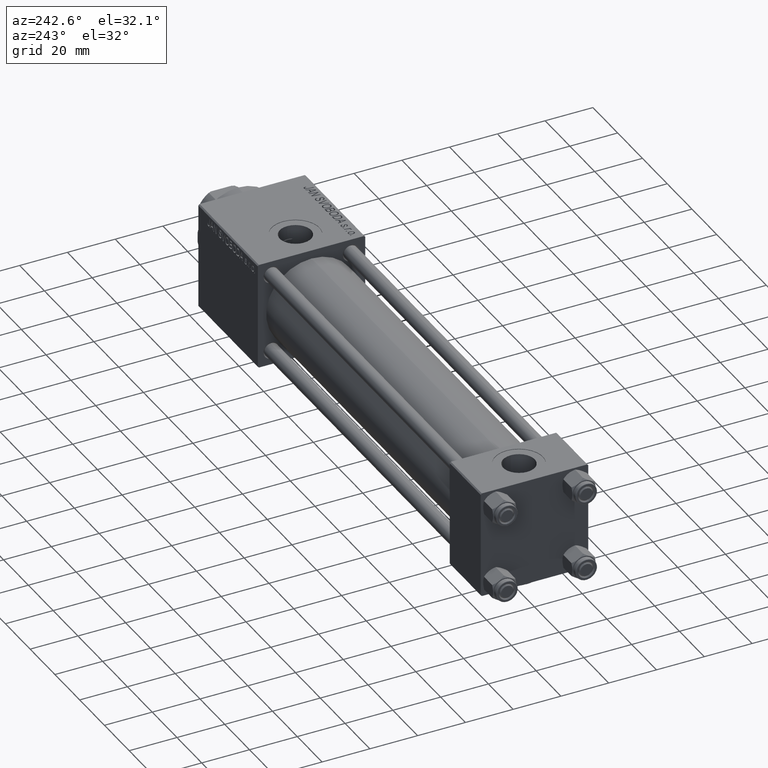
[diagram: clean part render]
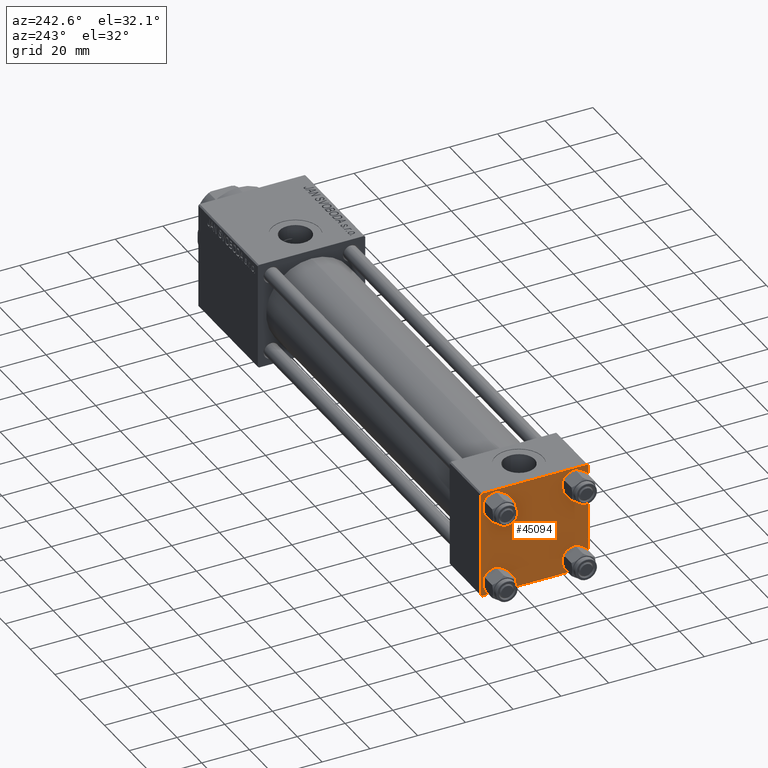
[diagram: same view with one face highlighted and labeled with its STEP entity id]
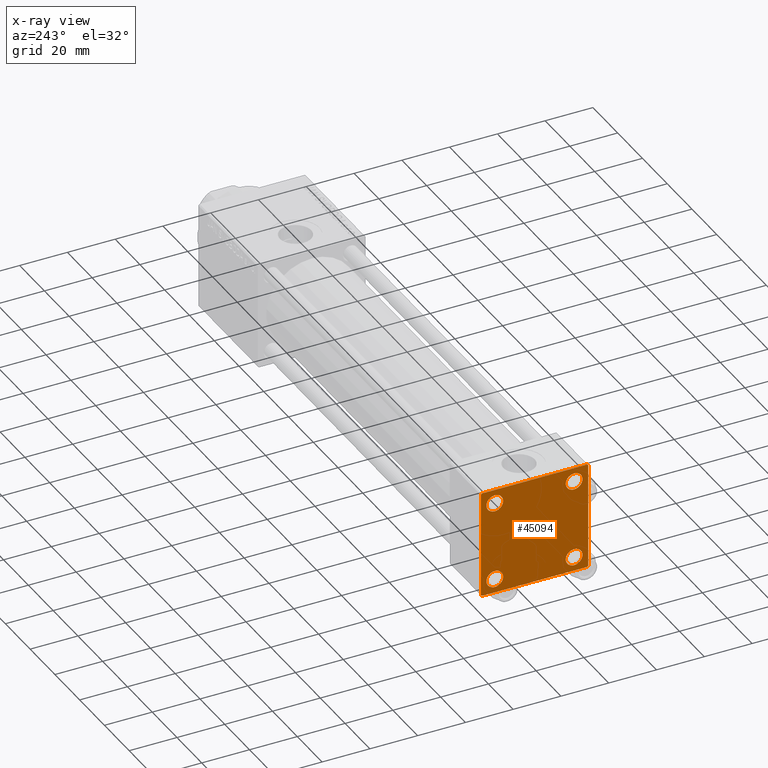
[diagram: x-ray of the same camera — body ghosted, the highlighted face saturated]
A machine part, auxiliary view. The second image highlights one B-rep face of the part: STEP entity #45094.
The next image is the same camera in x-ray: the body ghosted, the highlighted face saturated — about 0% of this face is hidden behind the body in this view.
In plain terms, the highlighted planar face has unit normal (-1, 0, 0).
Its self-contained STEP definition (entity closure, byte-faithful):
#184 = ORIENTED_EDGE ( 'NONE', *, *, #30209, .F. ) ;
#337 = EDGE_LOOP ( 'NONE', ( #13199, #28620 ) ) ;
#841 = CIRCLE ( 'NONE', #31068, 3.499999999999996003 ) ;
#1113 = EDGE_CURVE ( 'NONE', #16536, #39401, #24617, .T. ) ;
#1269 = CARTESIAN_POINT ( 'NONE',  ( 0.000000000000000000, 16.59999999999999787, -13.10000000000000675 ) ) ;
#1557 = EDGE_LOOP ( 'NONE', ( #15889, #29644 ) ) ;
#2138 = CARTESIAN_POINT ( 'NONE',  ( 0.000000000000000000, -21.99999999999997868, 22.50000000000000000 ) ) ;
#2219 = ORIENTED_EDGE ( 'NONE', *, *, #38857, .T. ) ;
#2565 = CARTESIAN_POINT ( 'NONE',  ( 0.000000000000000000, -16.59999999999999076, 13.10000000000001030 ) ) ;
#3727 = VECTOR ( 'NONE', #42954, 1000.000000000000114 ) ;
#4309 = FACE_BOUND ( 'NONE', #36253, .T. ) ;
#4429 = VECTOR ( 'NONE', #47414, 1000.000000000000000 ) ;
#4619 = CIRCLE ( 'NONE', #30524, 3.499999999999996003 ) ;
#4667 = DIRECTION ( 'NONE',  ( 1.000000000000000000, -0.000000000000000000, 0.000000000000000000 ) ) ;
#4908 = CARTESIAN_POINT ( 'NONE',  ( 0.000000000000000000, 22.50000000000000000, -22.49999999999999645 ) ) ;
#4917 = ORIENTED_EDGE ( 'NONE', *, *, #1113, .T. ) ;
#4999 = DIRECTION ( 'NONE',  ( -0.000000000000000000, -0.7071067811865426878, -0.7071067811865524577 ) ) ;
#5023 = ORIENTED_EDGE ( 'NONE', *, *, #40081, .T. ) ;
#5149 = DIRECTION ( 'NONE',  ( 1.000000000000000000, -0.000000000000000000, 0.000000000000000000 ) ) ;
#5203 = DIRECTION ( 'NONE',  ( 1.000000000000000000, -0.000000000000000000, 0.000000000000000000 ) ) ;
#6721 = VERTEX_POINT ( 'NONE', #30448 ) ;
#6767 = CARTESIAN_POINT ( 'NONE',  ( 0.000000000000000000, 16.59999999999999787, -16.60000000000000497 ) ) ;
#7136 = ORIENTED_EDGE ( 'NONE', *, *, #30970, .T. ) ;
#7644 = VERTEX_POINT ( 'NONE', #10767 ) ;
#7777 = VERTEX_POINT ( 'NONE', #41231 ) ;
#8197 = VERTEX_POINT ( 'NONE', #33572 ) ;
#9529 = CARTESIAN_POINT ( 'NONE',  ( 0.000000000000000000, -16.59999999999999076, -16.60000000000000853 ) ) ;
#10057 = CARTESIAN_POINT ( 'NONE',  ( 0.000000000000000000, 22.50000000000000000, 22.50000000000000355 ) ) ;
#10317 = CARTESIAN_POINT ( 'NONE',  ( 0.000000000000000000, -16.59999999999999076, -16.60000000000000853 ) ) ;
#10712 = CIRCLE ( 'NONE', #43569, 3.499999999999996003 ) ;
#10767 = CARTESIAN_POINT ( 'NONE',  ( 0.000000000000000000, 22.50000000000000000, -21.99999999999996803 ) ) ;
#11193 = CARTESIAN_POINT ( 'NONE',  ( 0.000000000000000000, -16.59999999999999076, -20.10000000000000497 ) ) ;
#11518 = DIRECTION ( 'NONE',  ( 0.000000000000000000, 0.000000000000000000, -1.000000000000000000 ) ) ;
#11599 = CIRCLE ( 'NONE', #16745, 3.499999999999996003 ) ;
#11892 = DIRECTION ( 'NONE',  ( -0.000000000000000000, 0.000000000000000000, 1.000000000000000000 ) ) ;
#12035 = CARTESIAN_POINT ( 'NONE',  ( -0.000000000000000000, -22.24999999999984013, 22.25000000000015277 ) ) ;
#12680 = DIRECTION ( 'NONE',  ( -1.000000000000000000, 0.000000000000000000, -0.000000000000000000 ) ) ;
#13199 = ORIENTED_EDGE ( 'NONE', *, *, #41444, .T. ) ;
#13219 = DIRECTION ( 'NONE',  ( 0.000000000000000000, -0.7071067811865426878, 0.7071067811865524577 ) ) ;
#13367 = EDGE_CURVE ( 'NONE', #8197, #52963, #45715, .T. ) ;
#13559 = LINE ( 'NONE', #4908, #25252 ) ;
#14477 = VERTEX_POINT ( 'NONE', #11193 ) ;
#14614 = FACE_BOUND ( 'NONE', #32179, .T. ) ;
#14824 = EDGE_CURVE ( 'NONE', #14477, #50421, #841, .T. ) ;
#15471 = CARTESIAN_POINT ( 'NONE',  ( 0.000000000000000000, 21.99999999999999289, 22.50000000000000355 ) ) ;
#15817 = LINE ( 'NONE', #12035, #39115 ) ;
#15889 = ORIENTED_EDGE ( 'NONE', *, *, #40375, .T. ) ;
#15949 = CARTESIAN_POINT ( 'NONE',  ( 0.000000000000000000, -16.59999999999999076, 16.60000000000000853 ) ) ;
#16196 = CARTESIAN_POINT ( 'NONE',  ( 0.000000000000000000, 0.000000000000000000, 0.000000000000000000 ) ) ;
#16238 = DIRECTION ( 'NONE',  ( 1.000000000000000000, -0.000000000000000000, 0.000000000000000000 ) ) ;
#16532 = CARTESIAN_POINT ( 'NONE',  ( 0.000000000000000000, -21.99999999999997158, -22.50000000000000711 ) ) ;
#16536 = VERTEX_POINT ( 'NONE', #2565 ) ;
#16745 = AXIS2_PLACEMENT_3D ( 'NONE', #9529, #5203, #50951 ) ;
#16990 = ORIENTED_EDGE ( 'NONE', *, *, #20915, .T. ) ;
#17141 = EDGE_LOOP ( 'NONE', ( #5023, #7136, #30751, #31369, #43865, #16990, #184, #2219 ) ) ;
#17369 = CARTESIAN_POINT ( 'NONE',  ( 0.000000000000000000, -16.59999999999999076, 16.60000000000000853 ) ) ;
#18049 = ORIENTED_EDGE ( 'NONE', *, *, #21995, .T. ) ;
#20915 = EDGE_CURVE ( 'NONE', #29931, #32687, #15817, .T. ) ;
#21036 = CARTESIAN_POINT ( 'NONE',  ( 0.000000000000000000, 22.50000000000000000, 22.50000000000000355 ) ) ;
#21120 = CIRCLE ( 'NONE', #44494, 3.499999999999996003 ) ;
#21149 = DIRECTION ( 'NONE',  ( 0.000000000000000000, 0.000000000000000000, 1.000000000000000000 ) ) ;
#21370 = CARTESIAN_POINT ( 'NONE',  ( 0.000000000000000000, 16.59999999999999787, 16.60000000000000497 ) ) ;
#21615 = EDGE_CURVE ( 'NONE', #29931, #7777, #36135, .T. ) ;
#21995 = EDGE_CURVE ( 'NONE', #6721, #29953, #52112, .T. ) ;
#22104 = LINE ( 'NONE', #22364, #3727 ) ;
#22209 = DIRECTION ( 'NONE',  ( 0.000000000000000000, -1.000000000000000000, -2.312964634635742957E-16 ) ) ;
#22364 = CARTESIAN_POINT ( 'NONE',  ( 0.000000000000000000, 22.24999999999999645, 22.24999999999999645 ) ) ;
#22563 = CARTESIAN_POINT ( 'NONE',  ( 0.000000000000000000, -16.59999999999999076, -13.10000000000001030 ) ) ;
#22604 = VECTOR ( 'NONE', #4999, 1000.000000000000000 ) ;
#23025 = VERTEX_POINT ( 'NONE', #27189 ) ;
#23831 = VECTOR ( 'NONE', #13219, 1000.000000000000000 ) ;
#23887 = CARTESIAN_POINT ( 'NONE',  ( 0.000000000000000000, -22.50000000000000000, 22.00000000000000000 ) ) ;
#24617 = CIRCLE ( 'NONE', #44512, 3.499999999999996003 ) ;
#24850 = PLANE ( 'NONE',  #45434 ) ;
#24853 = CARTESIAN_POINT ( 'NONE',  ( 0.000000000000000000, 16.59999999999999787, 20.10000000000000142 ) ) ;
#24889 = CARTESIAN_POINT ( 'NONE',  ( 0.000000000000000000, 16.59999999999999787, 16.60000000000000497 ) ) ;
#25252 = VECTOR ( 'NONE', #22209, 1000.000000000000000 ) ;
#25287 = CARTESIAN_POINT ( 'NONE',  ( 0.000000000000000000, 22.25000000000014566, -22.24999999999984013 ) ) ;
#25643 = LINE ( 'NONE', #21036, #30560 ) ;
#27102 = DIRECTION ( 'NONE',  ( 1.000000000000000000, -0.000000000000000000, 0.000000000000000000 ) ) ;
#27189 = CARTESIAN_POINT ( 'NONE',  ( 0.000000000000000000, 21.99999999999999289, -22.49999999999999645 ) ) ;
#28430 = DIRECTION ( 'NONE',  ( 0.000000000000000000, 0.000000000000000000, 1.000000000000000000 ) ) ;
#28620 = ORIENTED_EDGE ( 'NONE', *, *, #13367, .T. ) ;
#28920 = FACE_OUTER_BOUND ( 'NONE', #17141, .T. ) ;
#29644 = ORIENTED_EDGE ( 'NONE', *, *, #14824, .T. ) ;
#29931 = VERTEX_POINT ( 'NONE', #23887 ) ;
#29953 = VERTEX_POINT ( 'NONE', #1269 ) ;
#30209 = EDGE_CURVE ( 'NONE', #51657, #32687, #48220, .T. ) ;
#30448 = CARTESIAN_POINT ( 'NONE',  ( 0.000000000000000000, 16.59999999999999787, -20.10000000000000142 ) ) ;
#30524 = AXIS2_PLACEMENT_3D ( 'NONE', #15949, #36537, #36267 ) ;
#30560 = VECTOR ( 'NONE', #37562, 1000.000000000000000 ) ;
#30751 = ORIENTED_EDGE ( 'NONE', *, *, #52718, .T. ) ;
#30970 = EDGE_CURVE ( 'NONE', #7644, #23025, #49418, .T. ) ;
#31068 = AXIS2_PLACEMENT_3D ( 'NONE', #10317, #27102, #43889 ) ;
#31369 = ORIENTED_EDGE ( 'NONE', *, *, #45201, .T. ) ;
#31893 = DIRECTION ( 'NONE',  ( 0.000000000000000000, 0.000000000000000000, 1.000000000000000000 ) ) ;
#32066 = CARTESIAN_POINT ( 'NONE',  ( 0.000000000000000000, -22.50000000000000000, 22.50000000000000000 ) ) ;
#32179 = EDGE_LOOP ( 'NONE', ( #35700, #4917 ) ) ;
#32323 = VERTEX_POINT ( 'NONE', #16532 ) ;
#32328 = DIRECTION ( 'NONE',  ( -0.000000000000000000, 0.7071067811865525687, 0.7071067811865425767 ) ) ;
#32687 = VERTEX_POINT ( 'NONE', #2138 ) ;
#32944 = CARTESIAN_POINT ( 'NONE',  ( 0.000000000000000000, 22.50000000000000000, 21.99999999999999645 ) ) ;
#33572 = CARTESIAN_POINT ( 'NONE',  ( 0.000000000000000000, 16.59999999999999787, 13.10000000000000675 ) ) ;
#33889 = DIRECTION ( 'NONE',  ( 0.000000000000000000, 0.000000000000000000, 1.000000000000000000 ) ) ;
#34327 = LINE ( 'NONE', #46529, #23831 ) ;
#35130 = EDGE_CURVE ( 'NONE', #39401, #16536, #4619, .T. ) ;
#35700 = ORIENTED_EDGE ( 'NONE', *, *, #35130, .T. ) ;
#35970 = DIRECTION ( 'NONE',  ( 1.000000000000000000, -0.000000000000000000, 0.000000000000000000 ) ) ;
#36135 = LINE ( 'NONE', #32066, #46031 ) ;
#36253 = EDGE_LOOP ( 'NONE', ( #48451, #18049 ) ) ;
#36267 = DIRECTION ( 'NONE',  ( 0.000000000000000000, 0.000000000000000000, 1.000000000000000000 ) ) ;
#36537 = DIRECTION ( 'NONE',  ( 1.000000000000000000, -0.000000000000000000, 0.000000000000000000 ) ) ;
#37562 = DIRECTION ( 'NONE',  ( 0.000000000000000000, 0.000000000000000000, -1.000000000000000000 ) ) ;
#37913 = AXIS2_PLACEMENT_3D ( 'NONE', #21370, #5149, #50365 ) ;
#38857 = EDGE_CURVE ( 'NONE', #51657, #46862, #22104, .T. ) ;
#39115 = VECTOR ( 'NONE', #32328, 999.9999999999998863 ) ;
#39401 = VERTEX_POINT ( 'NONE', #49099 ) ;
#39829 = EDGE_CURVE ( 'NONE', #29953, #6721, #10712, .T. ) ;
#40081 = EDGE_CURVE ( 'NONE', #46862, #7644, #25643, .T. ) ;
#40375 = EDGE_CURVE ( 'NONE', #50421, #14477, #11599, .T. ) ;
#40569 = FACE_BOUND ( 'NONE', #337, .T. ) ;
#41231 = CARTESIAN_POINT ( 'NONE',  ( 0.000000000000000000, -22.50000000000000000, -21.99999999999997158 ) ) ;
#41444 = EDGE_CURVE ( 'NONE', #52963, #8197, #21120, .T. ) ;
#42954 = DIRECTION ( 'NONE',  ( 0.000000000000000000, 0.7071067811865474617, -0.7071067811865474617 ) ) ;
#43569 = AXIS2_PLACEMENT_3D ( 'NONE', #6767, #35970, #31893 ) ;
#43865 = ORIENTED_EDGE ( 'NONE', *, *, #21615, .F. ) ;
#43889 = DIRECTION ( 'NONE',  ( 0.000000000000000000, 0.000000000000000000, 1.000000000000000000 ) ) ;
#44338 = AXIS2_PLACEMENT_3D ( 'NONE', #50685, #4667, #21149 ) ;
#44494 = AXIS2_PLACEMENT_3D ( 'NONE', #24889, #16238, #28430 ) ;
#44512 = AXIS2_PLACEMENT_3D ( 'NONE', #17369, #50161, #33889 ) ;
#45094 = ADVANCED_FACE ( 'NONE', ( #14614, #45707, #4309, #40569, #28920 ), #24850, .T. ) ;
#45201 = EDGE_CURVE ( 'NONE', #32323, #7777, #34327, .T. ) ;
#45434 = AXIS2_PLACEMENT_3D ( 'NONE', #16196, #12680, #11892 ) ;
#45707 = FACE_BOUND ( 'NONE', #1557, .T. ) ;
#45715 = CIRCLE ( 'NONE', #37913, 3.499999999999996003 ) ;
#46031 = VECTOR ( 'NONE', #11518, 1000.000000000000000 ) ;
#46529 = CARTESIAN_POINT ( 'NONE',  ( 0.000000000000000000, -22.25000000000014566, -22.24999999999984013 ) ) ;
#46862 = VERTEX_POINT ( 'NONE', #32944 ) ;
#47414 = DIRECTION ( 'NONE',  ( 0.000000000000000000, -1.000000000000000000, -7.709882115452476934E-17 ) ) ;
#48220 = LINE ( 'NONE', #10057, #4429 ) ;
#48451 = ORIENTED_EDGE ( 'NONE', *, *, #39829, .T. ) ;
#49099 = CARTESIAN_POINT ( 'NONE',  ( 0.000000000000000000, -16.59999999999999076, 20.10000000000000853 ) ) ;
#49418 = LINE ( 'NONE', #25287, #22604 ) ;
#50161 = DIRECTION ( 'NONE',  ( 1.000000000000000000, -0.000000000000000000, 0.000000000000000000 ) ) ;
#50365 = DIRECTION ( 'NONE',  ( 0.000000000000000000, 0.000000000000000000, 1.000000000000000000 ) ) ;
#50421 = VERTEX_POINT ( 'NONE', #22563 ) ;
#50685 = CARTESIAN_POINT ( 'NONE',  ( 0.000000000000000000, 16.59999999999999787, -16.60000000000000497 ) ) ;
#50951 = DIRECTION ( 'NONE',  ( 0.000000000000000000, 0.000000000000000000, 1.000000000000000000 ) ) ;
#51657 = VERTEX_POINT ( 'NONE', #15471 ) ;
#52112 = CIRCLE ( 'NONE', #44338, 3.499999999999996003 ) ;
#52718 = EDGE_CURVE ( 'NONE', #23025, #32323, #13559, .T. ) ;
#52963 = VERTEX_POINT ( 'NONE', #24853 ) ;